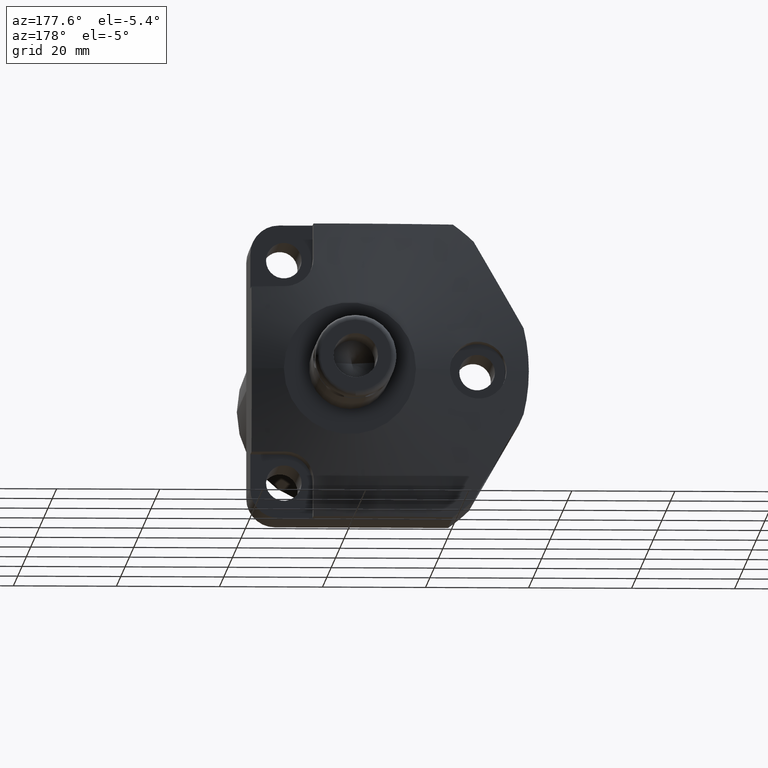
[diagram: clean part render]
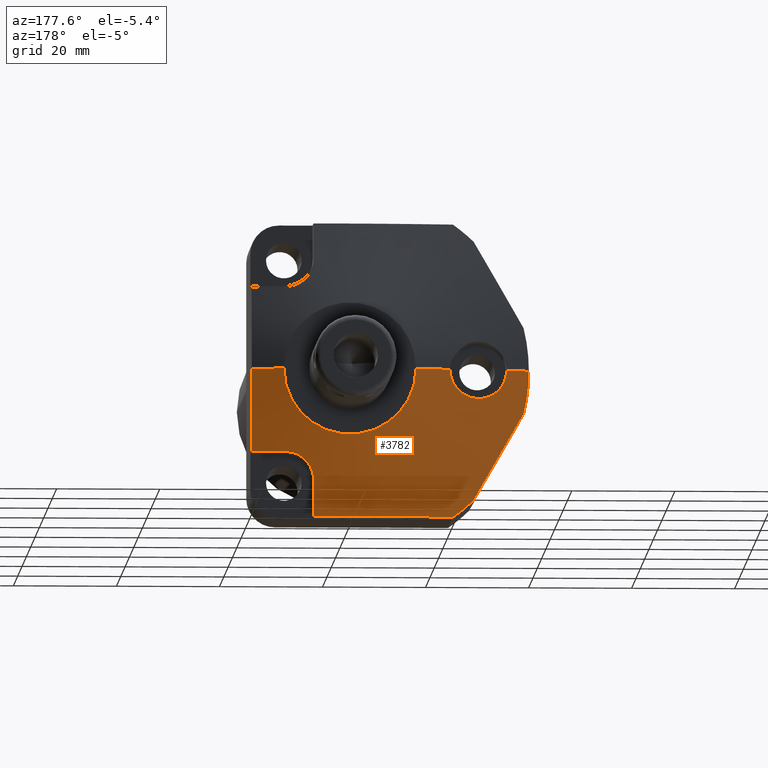
[diagram: same view with one face highlighted and labeled with its STEP entity id]
A machine part, auxiliary view. The second image highlights one B-rep face of the part: STEP entity #3782.
In plain terms, the highlighted conical surface has half-angle 78 deg.
Its self-contained STEP definition (entity closure, byte-faithful):
#596=CARTESIAN_POINT('',(1.250073871104E1,2.539226398401E1,-1.610951142084E1));
#597=CARTESIAN_POINT('',(1.315957716037E1,2.530637610513E1,-1.610951142084E1));
#598=CARTESIAN_POINT('',(1.451362824883E1,2.512287749171E1,-1.610025467028E1));
#599=CARTESIAN_POINT('',(1.662857663613E1,2.480972748197E1,-1.610404152278E1));
#600=CARTESIAN_POINT('',(1.818905152770E1,2.456400543940E1,-1.61032E1));
#601=CARTESIAN_POINT('',(1.8999E1,2.443267345906E1,-1.61032E1));
#613=CARTESIAN_POINT('',(0.E0,2.230292510022E1,0.E0));
#614=DIRECTION('',(0.E0,-1.E0,0.E0));
#615=DIRECTION('',(-1.E0,0.E0,0.E0));
#616=AXIS2_PLACEMENT_3D('',#613,#614,#615);
#621=CARTESIAN_POINT('',(0.E0,2.230292510022E1,0.E0));
#622=DIRECTION('',(0.E0,-1.E0,0.E0));
#623=DIRECTION('',(-6.932373120989E-1,0.E0,-7.207093929691E-1));
#624=AXIS2_PLACEMENT_3D('',#621,#622,#623);
#629=CARTESIAN_POINT('',(1.250073871104E1,2.539226398401E1,-1.610951142084E1));
#630=CARTESIAN_POINT('',(1.208419035734E1,2.544656630135E1,-1.610951142084E1));
#631=CARTESIAN_POINT('',(1.124797381517E1,2.553447614907E1,-1.621364868690E1));
#632=CARTESIAN_POINT('',(1.007706041069E1,2.559793821150E1,-1.661997137448E1));
#633=CARTESIAN_POINT('',(9.023726776852E0,2.558582838301E1,-1.727858803632E1));
#634=CARTESIAN_POINT('',(8.141339273301E0,2.549991727344E1,-1.815263472586E1));
#635=CARTESIAN_POINT('',(7.468244338111E0,2.534762342234E1,-1.920679055754E1));
#636=CARTESIAN_POINT('',(7.047528538045E0,2.514012052633E1,-2.039734348499E1));
#637=CARTESIAN_POINT('',(6.940299914366E0,2.497661951277E1,-2.124156735254E1));
#638=CARTESIAN_POINT('',(6.940299914366E0,2.489066331304E1,-2.166620032219E1));
#643=CARTESIAN_POINT('',(-3.0569E1,2.322882148285E1,0.E0));
#644=CARTESIAN_POINT('',(-3.0569E1,2.322882148285E1,-4.119195118027E-1));
#645=CARTESIAN_POINT('',(-3.047678818358E1,2.324483417170E1,-1.236004052185E0));
#646=CARTESIAN_POINT('',(-3.006949507065E1,2.331608297691E1,-2.410391949707E0));
#647=CARTESIAN_POINT('',(-2.941010309407E1,2.343315725130E1,-3.469383173254E0));
#648=CARTESIAN_POINT('',(-2.853329644424E1,2.359231204225E1,-4.355590174607E0));
#649=CARTESIAN_POINT('',(-2.747438978984E1,2.379024809156E1,-5.029795790198E0));
#650=CARTESIAN_POINT('',(-2.628810792406E1,2.402022819590E1,-5.451553541709E0));
#651=CARTESIAN_POINT('',(-2.503280381460E1,2.427425595397E1,-5.597823285762E0));
#652=CARTESIAN_POINT('',(-2.377085141418E1,2.454235856243E1,-5.457066189465E0));
#653=CARTESIAN_POINT('',(-2.257355640161E1,2.481047252019E1,-5.035747203737E0));
#654=CARTESIAN_POINT('',(-2.150098954790E1,2.506404875090E1,-4.354037084547E0));
#655=CARTESIAN_POINT('',(-2.061769700082E1,2.528404533780E1,-3.457452030462E0));
#656=CARTESIAN_POINT('',(-1.995968589219E1,2.545551085657E1,-2.391984775888E0));
#657=CARTESIAN_POINT('',(-1.955821181281E1,2.556372195777E1,-1.219582470505E0));
#658=CARTESIAN_POINT('',(-1.9469E1,2.558819931739E1,-4.052796353512E-1));
#659=CARTESIAN_POINT('',(-1.9469E1,2.558819931739E1,0.E0));
#704=DIRECTION('',(9.781476007338E-1,2.079116908178E-1,0.E0));
#705=VECTOR('',#704,4.453315631232E0);
#706=CARTESIAN_POINT('',(-3.4925E1,2.230292510022E1,0.E0));
#707=LINE('',#706,#705);
#732=DIRECTION('',(9.781476007338E-1,2.079116908178E-1,0.E0));
#733=VECTOR('',#732,6.790386231094E0);
#734=CARTESIAN_POINT('',(-1.9469E1,2.558819931739E1,0.E0));
#735=LINE('',#734,#733);
#739=DIRECTION('',(-9.781476007338E-1,2.079116908178E-1,0.E0));
#740=VECTOR('',#739,6.309886151507E0);
#741=CARTESIAN_POINT('',(1.8999E1,2.568810090137E1,0.E0));
#742=LINE('',#741,#740);
#998=CARTESIAN_POINT('',(0.E0,2.7E1,0.E0));
#999=DIRECTION('',(0.E0,-1.E0,0.E0));
#1000=DIRECTION('',(-1.E0,0.E0,0.E0));
#1001=AXIS2_PLACEMENT_3D('',#998,#999,#1000);
#2110=CARTESIAN_POINT('',(1.8999E1,2.443267345906E1,-1.61032E1));
#2111=CARTESIAN_POINT('',(1.8999E1,2.459150951679E1,-1.494747487983E1));
#2112=CARTESIAN_POINT('',(1.8999E1,2.488139125333E1,-1.269063476703E1));
#2113=CARTESIAN_POINT('',(1.8999E1,2.522069174292E1,-9.537802241110E0));
#2114=CARTESIAN_POINT('',(1.8999E1,2.548031253252E1,-6.408767786311E0));
#2115=CARTESIAN_POINT('',(1.8999E1,2.564846619467E1,-3.232667150500E0));
#2116=CARTESIAN_POINT('',(1.8999E1,2.568810090137E1,-1.082896669053E0));
#2117=CARTESIAN_POINT('',(1.8999E1,2.568810090137E1,0.E0));
#2252=CARTESIAN_POINT('',(-3.390418762130E1,2.230292510022E1,
-8.382224450556E0));
#2253=CARTESIAN_POINT('',(-3.326071415063E1,2.237884424952E1,
-9.496753195092E0));
#2254=CARTESIAN_POINT('',(-3.197158322669E1,2.250295932891E1,
-1.172959345296E1));
#2255=CARTESIAN_POINT('',(-3.003168618608E1,2.259850205624E1,
-1.508959368875E1));
#2256=CARTESIAN_POINT('',(-2.808372545838E1,2.259849958131E1,
-1.846356064027E1));
#2257=CARTESIAN_POINT('',(-2.614385872327E1,2.250295434524E1,
-2.182350838540E1));
#2258=CARTESIAN_POINT('',(-2.485476409964E1,2.237884159536E1,
-2.405628576929E1));
#2259=CARTESIAN_POINT('',(-2.421131312506E1,2.230292510022E1,
-2.517077554944E1));
#2430=CARTESIAN_POINT('',(-2.018818030433E1,2.230292510022E1,-2.8499E1));
#2431=CARTESIAN_POINT('',(-1.878554944880E1,2.247526215425E1,-2.8499E1));
#2432=CARTESIAN_POINT('',(-1.604196678852E1,2.278805868381E1,-2.8499E1));
#2433=CARTESIAN_POINT('',(-1.217767351256E1,2.315304749219E1,-2.8499E1));
#2434=CARTESIAN_POINT('',(-8.365058691698E0,2.342920963131E1,-2.8499E1));
#2435=CARTESIAN_POINT('',(-4.557015210611E0,2.360938147515E1,-2.8499E1));
#2436=CARTESIAN_POINT('',(-7.233184425525E-1,2.368528789832E1,-2.8499E1));
#2437=CARTESIAN_POINT('',(3.117263494864E0,2.365068086155E1,-2.8499E1));
#2438=CARTESIAN_POINT('',(5.662946677332E0,2.355595972868E1,-2.8499E1));
#2439=CARTESIAN_POINT('',(6.9338E0,2.349210049255E1,-2.8499E1));
#2472=CARTESIAN_POINT('',(6.9338E0,2.349210049255E1,-2.8499E1));
#2473=CARTESIAN_POINT('',(6.9338E0,2.366218719549E1,-2.767546177633E1));
#2474=CARTESIAN_POINT('',(6.934666655249E0,2.399261596551E1,-2.607131294372E1));
#2475=CARTESIAN_POINT('',(6.930766706629E0,2.445877741648E1,-2.379636942307E1));
#2476=CARTESIAN_POINT('',(6.940299914366E0,2.474978764041E1,-2.236214145737E1));
#2477=CARTESIAN_POINT('',(6.940299914366E0,2.489066331304E1,-2.166620032219E1));
#3006=CARTESIAN_POINT('',(-3.4925E1,2.230292510022E1,0.E0));
#3007=CARTESIAN_POINT('',(-3.390418762130E1,2.230292510022E1,
-8.382224450556E0));
#3008=VERTEX_POINT('',#3006);
#3009=VERTEX_POINT('',#3007);
#3010=CARTESIAN_POINT('',(-2.421131312506E1,2.230292510022E1,
-2.517077554944E1));
#3011=CARTESIAN_POINT('',(-2.018818030433E1,2.230292510022E1,-2.8499E1));
#3012=VERTEX_POINT('',#3010);
#3013=VERTEX_POINT('',#3011);
#3020=CARTESIAN_POINT('',(-1.2827E1,2.7E1,0.E0));
#3021=CARTESIAN_POINT('',(1.2827E1,2.7E1,0.E0));
#3022=VERTEX_POINT('',#3020);
#3023=VERTEX_POINT('',#3021);
#3025=VERTEX_POINT('',#2439);
#3029=VERTEX_POINT('',#596);
#3030=VERTEX_POINT('',#601);
#3031=VERTEX_POINT('',#2477);
#3032=CARTESIAN_POINT('',(-3.0569E1,2.322882148285E1,0.E0));
#3033=VERTEX_POINT('',#3032);
#3034=CARTESIAN_POINT('',(-1.9469E1,2.558819931739E1,0.E0));
#3035=VERTEX_POINT('',#3034);
#3036=CARTESIAN_POINT('',(1.8999E1,2.568810090137E1,0.E0));
#3037=VERTEX_POINT('',#3036);
#3750=CARTESIAN_POINT('',(0.E0,2.465146255011E1,0.E0));
#3751=DIRECTION('',(0.E0,-1.E0,0.E0));
#3752=DIRECTION('',(-1.E0,0.E0,0.E0));
#3753=AXIS2_PLACEMENT_3D('',#3750,#3751,#3752);
#3754=CONICAL_SURFACE('',#3753,2.3876E1,7.8E1);
#3756=ORIENTED_EDGE('',*,*,#3755,.T.);
#3758=ORIENTED_EDGE('',*,*,#3757,.T.);
#3760=ORIENTED_EDGE('',*,*,#3759,.T.);
#3762=ORIENTED_EDGE('',*,*,#3761,.T.);
#3764=ORIENTED_EDGE('',*,*,#3763,.T.);
#3766=ORIENTED_EDGE('',*,*,#3765,.F.);
#3767=ORIENTED_EDGE('',*,*,#3740,.T.);
#3769=ORIENTED_EDGE('',*,*,#3768,.T.);
#3771=ORIENTED_EDGE('',*,*,#3770,.T.);
#3773=ORIENTED_EDGE('',*,*,#3772,.F.);
#3775=ORIENTED_EDGE('',*,*,#3774,.F.);
#3777=ORIENTED_EDGE('',*,*,#3776,.F.);
#3779=ORIENTED_EDGE('',*,*,#3778,.F.);
#3780=EDGE_LOOP('',(#3756,#3758,#3760,#3762,#3764,#3766,#3767,#3769,#3771,#3773,
#3775,#3777,#3779));
#3781=FACE_OUTER_BOUND('',#3780,.F.);
#3782=ADVANCED_FACE('',(#3781),#3754,.T.);
#602=B_SPLINE_CURVE_WITH_KNOTS('',3,(#596,#597,#598,#599,#600,#601),
.UNSPECIFIED.,.F.,.F.,(4,1,1,4),(0.E0,3.333333333333E-1,6.666666666667E-1,1.E0),
.UNSPECIFIED.);
#617=CIRCLE('',#616,3.4925E1);
#625=CIRCLE('',#624,3.4925E1);
#639=B_SPLINE_CURVE_WITH_KNOTS('',3,(#629,#630,#631,#632,#633,#634,#635,#636,
#637,#638),.UNSPECIFIED.,.F.,.F.,(4,1,1,1,1,1,1,4),(0.E0,1.428571428571E-1,
2.857142857143E-1,4.285714285714E-1,5.714285714286E-1,7.142857142857E-1,
8.571428571429E-1,1.E0),.UNSPECIFIED.);
#660=B_SPLINE_CURVE_WITH_KNOTS('',3,(#643,#644,#645,#646,#647,#648,#649,#650,
#651,#652,#653,#654,#655,#656,#657,#658,#659),.UNSPECIFIED.,.F.,.F.,(4,1,1,1,1,
1,1,1,1,1,1,1,1,1,4),(0.E0,7.142857142857E-2,1.428571428571E-1,
2.142857142857E-1,2.857142857143E-1,3.571428571429E-1,4.285714285714E-1,5.E-1,
5.714285714286E-1,6.428571428571E-1,7.142857142857E-1,7.857142857143E-1,
8.571428571429E-1,9.285714285714E-1,1.E0),.UNSPECIFIED.);
#1002=CIRCLE('',#1001,1.2827E1);
#2118=B_SPLINE_CURVE_WITH_KNOTS('',3,(#2110,#2111,#2112,#2113,#2114,#2115,#2116,
#2117),.UNSPECIFIED.,.F.,.F.,(4,1,1,1,1,4),(0.E0,2.E-1,4.E-1,6.E-1,8.E-1,1.E0),
.UNSPECIFIED.);
#2260=B_SPLINE_CURVE_WITH_KNOTS('',3,(#2252,#2253,#2254,#2255,#2256,#2257,#2258,
#2259),.UNSPECIFIED.,.F.,.F.,(4,1,1,1,1,4),(0.E0,2.E-1,4.E-1,6.E-1,8.E-1,1.E0),
.UNSPECIFIED.);
#2440=B_SPLINE_CURVE_WITH_KNOTS('',3,(#2430,#2431,#2432,#2433,#2434,#2435,#2436,
#2437,#2438,#2439),.UNSPECIFIED.,.F.,.F.,(4,1,1,1,1,1,1,4),(0.E0,
1.428571428571E-1,2.857142857143E-1,4.285714285714E-1,5.714285714286E-1,
7.142857142857E-1,8.571428571429E-1,1.E0),.UNSPECIFIED.);
#2478=B_SPLINE_CURVE_WITH_KNOTS('',3,(#2472,#2473,#2474,#2475,#2476,#2477),
.UNSPECIFIED.,.F.,.F.,(4,1,1,4),(0.E0,3.333333333333E-1,6.666666666667E-1,1.E0),
.UNSPECIFIED.);
#3740=EDGE_CURVE('',#3029,#3030,#602,.T.);
#3755=EDGE_CURVE('',#3008,#3009,#617,.T.);
#3757=EDGE_CURVE('',#3009,#3012,#2260,.T.);
#3759=EDGE_CURVE('',#3012,#3013,#625,.T.);
#3761=EDGE_CURVE('',#3013,#3025,#2440,.T.);
#3763=EDGE_CURVE('',#3025,#3031,#2478,.T.);
#3765=EDGE_CURVE('',#3029,#3031,#639,.T.);
#3768=EDGE_CURVE('',#3030,#3037,#2118,.T.);
#3770=EDGE_CURVE('',#3037,#3023,#742,.T.);
#3772=EDGE_CURVE('',#3022,#3023,#1002,.T.);
#3774=EDGE_CURVE('',#3035,#3022,#735,.T.);
#3776=EDGE_CURVE('',#3033,#3035,#660,.T.);
#3778=EDGE_CURVE('',#3008,#3033,#707,.T.);